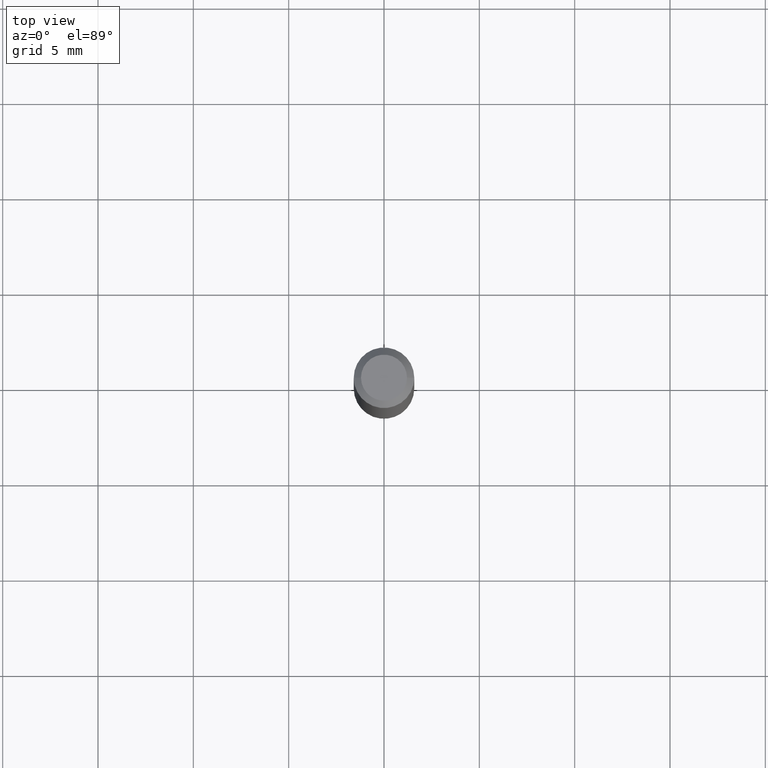
[diagram: clean part render]
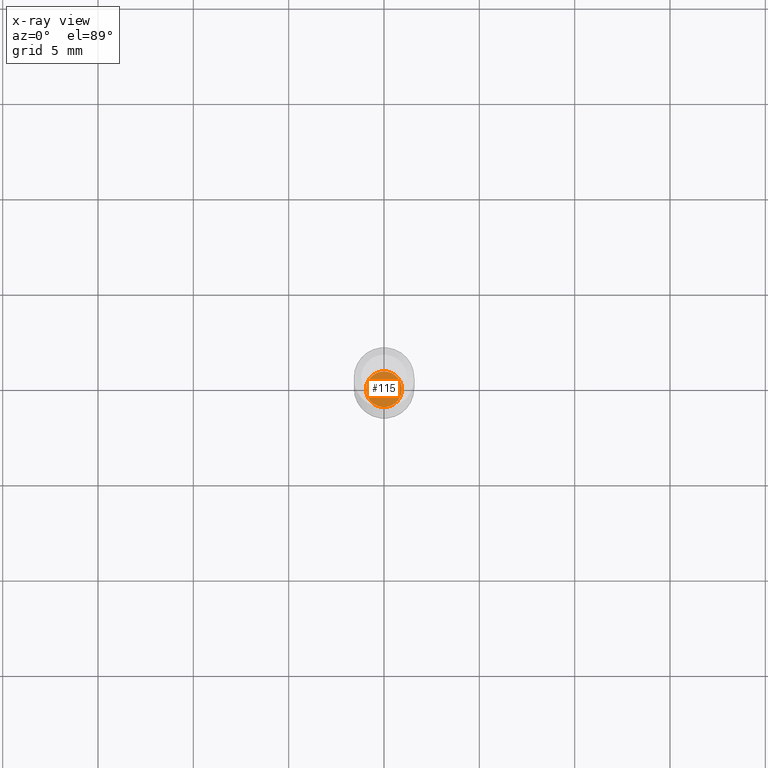
[diagram: x-ray — body ghosted, one internal face saturated and labeled with its STEP entity id]
A machine part, top view, then the same camera in x-ray: the body is ghosted and one INTERNAL B-rep face — a face not visible from any outside direction — is saturated and labeled: STEP entity #115.
In plain terms, the highlighted planar face has unit normal (-0, 0, 1).
Its self-contained STEP definition (entity closure, byte-faithful):
#7 = DIRECTION ( 'NONE',  ( 1.000000000000000000, -6.982962677686255667E-15, 0.000000000000000000 ) ) ;
#30 = ORIENTED_EDGE ( 'NONE', *, *, #484, .F. ) ;
#32 = DIRECTION ( 'NONE',  ( 1.000000000000000000, -6.982962677686265922E-15, 4.876176775795935793E-29 ) ) ;
#64 = ORIENTED_EDGE ( 'NONE', *, *, #265, .F. ) ;
#91 = VERTEX_POINT ( 'NONE', #285 ) ;
#101 = VERTEX_POINT ( 'NONE', #163 ) ;
#112 = PLANE ( 'NONE',  #116 ) ;
#115 = ADVANCED_FACE ( 'NONE', ( #474 ), #112, .F. ) ;
#116 = AXIS2_PLACEMENT_3D ( 'NONE', #275, #398, #32 ) ;
#161 = DIRECTION ( 'NONE',  ( 1.000000000000000000, -6.982962677686255667E-15, 0.000000000000000000 ) ) ;
#163 = CARTESIAN_POINT ( 'NONE',  ( -0.03699999999999999123, -4.578880318239517171E-15, -1.387500000000000178 ) ) ;
#188 = CIRCLE ( 'NONE', #399, 0.03699999999999999123 ) ;
#195 = CARTESIAN_POINT ( 'NONE',  ( 3.393087968581877252E-29, -4.844430357644865674E-15, -1.387500000000000178 ) ) ;
#265 = EDGE_CURVE ( 'NONE', #91, #101, #272, .T. ) ;
#272 = CIRCLE ( 'NONE', #497, 0.03699999999999999123 ) ;
#275 = CARTESIAN_POINT ( 'NONE',  ( 3.393087968581877252E-29, -4.844430357644865674E-15, -1.387500000000000178 ) ) ;
#285 = CARTESIAN_POINT ( 'NONE',  ( 0.03699999999999999123, -5.102799976719256880E-15, -1.387500000000000178 ) ) ;
#296 = DIRECTION ( 'NONE',  ( -2.445468806185136597E-29, 3.491481338843145583E-15, 1.000000000000000000 ) ) ;
#304 = EDGE_LOOP ( 'NONE', ( #64, #30 ) ) ;
#354 = DIRECTION ( 'NONE',  ( -2.445468806185136597E-29, 3.491481338843145583E-15, 1.000000000000000000 ) ) ;
#398 = DIRECTION ( 'NONE',  ( -2.438088387897960049E-29, 3.491481338843145188E-15, 1.000000000000000000 ) ) ;
#399 = AXIS2_PLACEMENT_3D ( 'NONE', #195, #354, #161 ) ;
#410 = CARTESIAN_POINT ( 'NONE',  ( 3.393087968581877252E-29, -4.844430357644865674E-15, -1.387500000000000178 ) ) ;
#474 = FACE_OUTER_BOUND ( 'NONE', #304, .T. ) ;
#484 = EDGE_CURVE ( 'NONE', #101, #91, #188, .T. ) ;
#497 = AXIS2_PLACEMENT_3D ( 'NONE', #410, #296, #7 ) ;